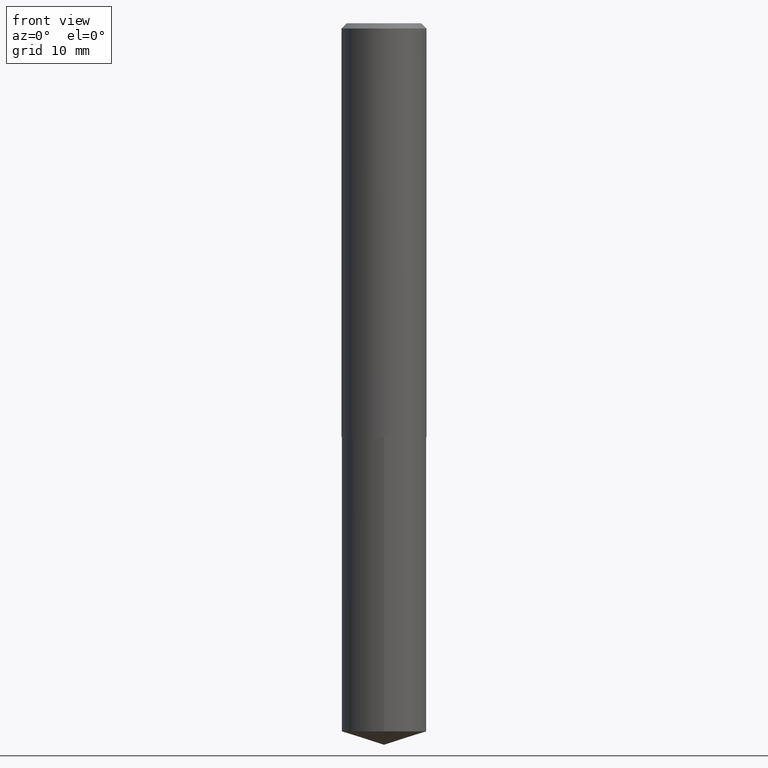
[diagram: clean part render]
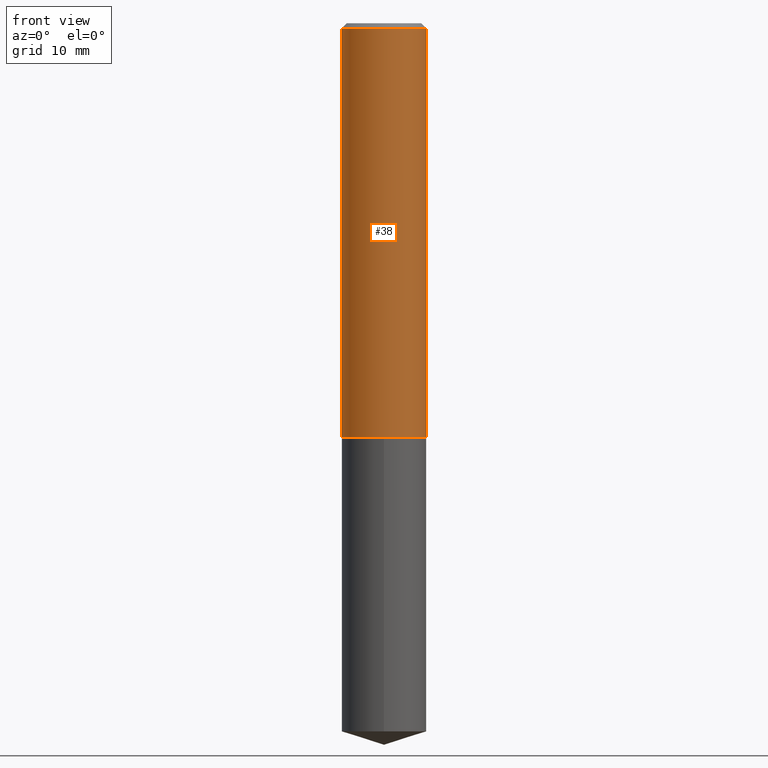
[diagram: same view with one face highlighted and labeled with its STEP entity id]
A machine part, front view. The second image highlights one B-rep face of the part: STEP entity #38.
In plain terms, the highlighted cylindrical surface (partial cylindrical patch) has radius 6.35 mm, axis along (-0, 0, 1).
Its self-contained STEP definition (entity closure, byte-faithful):
#2 = AXIS2_PLACEMENT_3D ( 'NONE', #130, #312, #271 ) ;
#21 = ORIENTED_EDGE ( 'NONE', *, *, #206, .F. ) ;
#34 = DIRECTION ( 'NONE',  ( 1.000000000000000000, -6.982962677686267499E-15, 4.876176775795936353E-29 ) ) ;
#36 = DIRECTION ( 'NONE',  ( -2.445468806185136597E-29, 3.491481338843145583E-15, 1.000000000000000000 ) ) ;
#38 = ADVANCED_FACE ( 'NONE', ( #66 ), #182, .T. ) ;
#64 = AXIS2_PLACEMENT_3D ( 'NONE', #131, #36, #34 ) ;
#66 = FACE_OUTER_BOUND ( 'NONE', #364, .T. ) ;
#76 = LINE ( 'NONE', #340, #203 ) ;
#96 = VERTEX_POINT ( 'NONE', #221 ) ;
#102 = CARTESIAN_POINT ( 'NONE',  ( -0.2500000000000001110, 1.776356839400251254E-15, -1.229733772563727146E-29 ) ) ;
#106 = VERTEX_POINT ( 'NONE', #113 ) ;
#113 = CARTESIAN_POINT ( 'NONE',  ( -0.2500000000000000000, -2.532567567899545916E-15, -0.03125000000000021511 ) ) ;
#114 = EDGE_CURVE ( 'NONE', #106, #279, #309, .T. ) ;
#130 = CARTESIAN_POINT ( 'NONE',  ( 5.959607480673178774E-29, -8.508740022760746027E-15, -2.437000000000000277 ) ) ;
#131 = CARTESIAN_POINT ( 'NONE',  ( 0.000000000000000000, 0.000000000000000000, 0.000000000000000000 ) ) ;
#137 = CARTESIAN_POINT ( 'NONE',  ( 0.2500000000000000000, -1.854849461260415778E-15, -0.03125000000000021511 ) ) ;
#138 = DIRECTION ( 'NONE',  ( -2.445468806185136597E-29, 3.491481338843145583E-15, 1.000000000000000000 ) ) ;
#149 = VERTEX_POINT ( 'NONE', #255 ) ;
#160 = LINE ( 'NONE', #102, #262 ) ;
#182 = CYLINDRICAL_SURFACE ( 'NONE', #64, 0.2500000000000001110 ) ;
#203 = VECTOR ( 'NONE', #280, 39.37007874015748143 ) ;
#206 = EDGE_CURVE ( 'NONE', #96, #106, #160, .T. ) ;
#215 = ORIENTED_EDGE ( 'NONE', *, *, #379, .T. ) ;
#221 = CARTESIAN_POINT ( 'NONE',  ( -0.2500000000000002776, -6.732383183360494773E-15, -2.437000000000000277 ) ) ;
#234 = CIRCLE ( 'NONE', #2, 0.2500000000000002776 ) ;
#241 = AXIS2_PLACEMENT_3D ( 'NONE', #281, #138, #301 ) ;
#244 = ORIENTED_EDGE ( 'NONE', *, *, #114, .F. ) ;
#247 = ORIENTED_EDGE ( 'NONE', *, *, #289, .T. ) ;
#255 = CARTESIAN_POINT ( 'NONE',  ( 0.2500000000000002776, -1.025448069218231586E-14, -2.437000000000000277 ) ) ;
#262 = VECTOR ( 'NONE', #272, 39.37007874015748143 ) ;
#271 = DIRECTION ( 'NONE',  ( 1.000000000000000000, -6.982962677686266711E-15, 0.000000000000000000 ) ) ;
#272 = DIRECTION ( 'NONE',  ( -2.445468806185136877E-29, 3.491481338843145188E-15, 1.000000000000000000 ) ) ;
#279 = VERTEX_POINT ( 'NONE', #137 ) ;
#280 = DIRECTION ( 'NONE',  ( -2.445468806185136877E-29, 3.491481338843145188E-15, 1.000000000000000000 ) ) ;
#281 = CARTESIAN_POINT ( 'NONE',  ( 7.642090019328603538E-31, -1.091087918388490390E-16, -0.03125000000000021511 ) ) ;
#289 = EDGE_CURVE ( 'NONE', #96, #149, #234, .T. ) ;
#301 = DIRECTION ( 'NONE',  ( 1.000000000000000000, -6.982962677686266711E-15, 0.000000000000000000 ) ) ;
#309 = CIRCLE ( 'NONE', #241, 0.2500000000000000000 ) ;
#312 = DIRECTION ( 'NONE',  ( -2.445468806185136597E-29, 3.491481338843145583E-15, 1.000000000000000000 ) ) ;
#340 = CARTESIAN_POINT ( 'NONE',  ( 0.2500000000000001110, -1.745740669421567664E-15, 1.219044193948984649E-29 ) ) ;
#364 = EDGE_LOOP ( 'NONE', ( #21, #247, #215, #244 ) ) ;
#379 = EDGE_CURVE ( 'NONE', #149, #279, #76, .T. ) ;